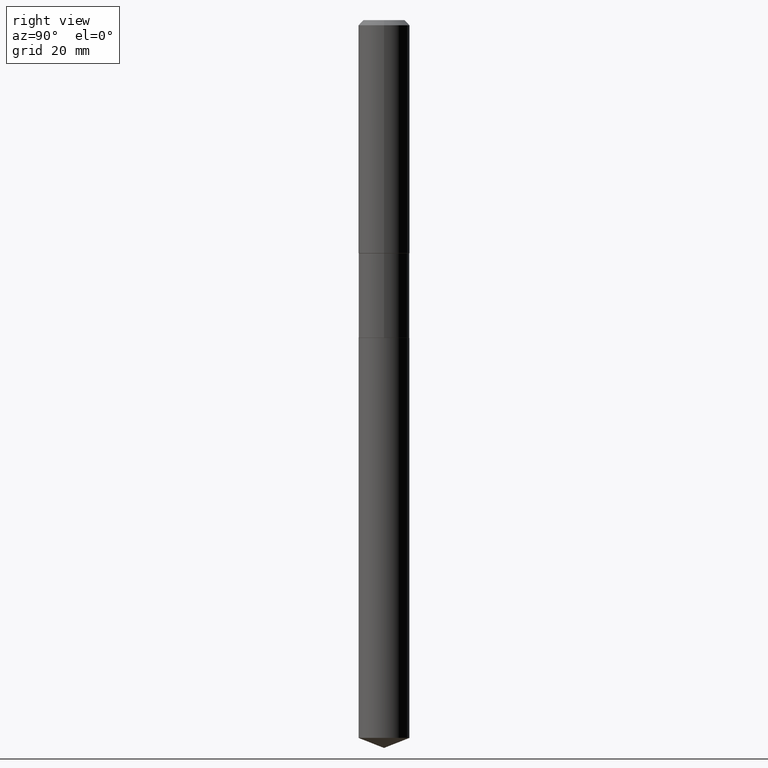
[diagram: clean part render]
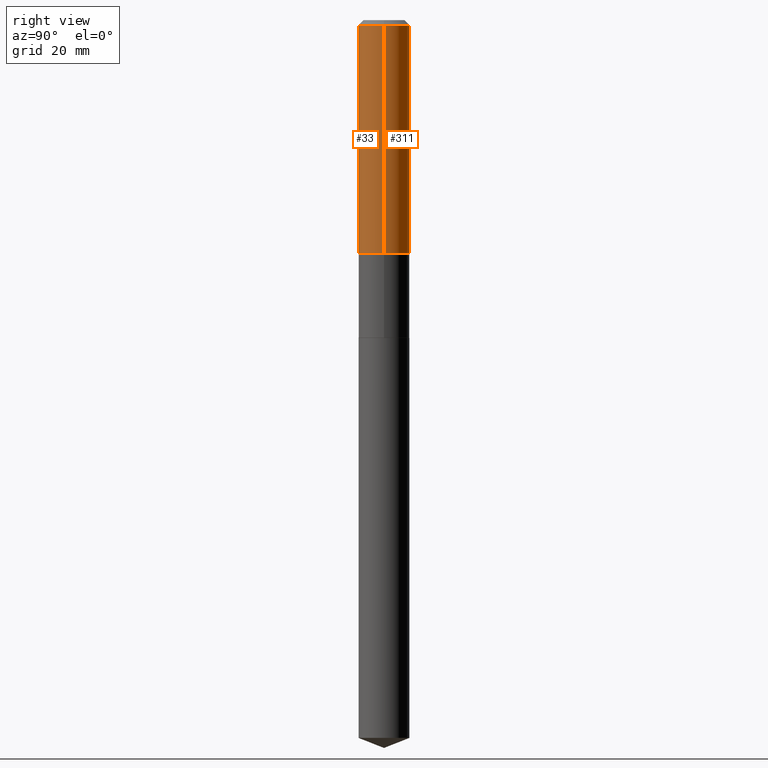
[diagram: same view with one multi-face feature highlighted, each face labeled with its STEP entity id]
A machine part, right view. The highlighted faces form ONE feature: a constant-radius fillet chain: 2 tangent blend faces with common blend radius 5 mm. The faces share edges in the B-rep.
Their STEP definitions:
[1] entity #33 (Cylinder):
#4 = DIRECTION ( 'NONE',  ( 1.000000000000000000, -6.982962677686265922E-15, 0.000000000000000000 ) ) ;
#14 = VERTEX_POINT ( 'NONE', #322 ) ;
#33 = ADVANCED_FACE ( 'NONE', ( #139 ), #134, .T. ) ;
#63 = VERTEX_POINT ( 'NONE', #484 ) ;
#77 = DIRECTION ( 'NONE',  ( -2.445468806185136877E-29, 3.491481338843145188E-15, 1.000000000000000000 ) ) ;
#107 = VECTOR ( 'NONE', #77, 39.37007874015748143 ) ;
#134 = CYLINDRICAL_SURFACE ( 'NONE', #151, 0.1968500000000001082 ) ;
#135 = CARTESIAN_POINT ( 'NONE',  ( 0.1968500000000001082, -1.374596203102542397E-15, 9.598753983154305062E-30 ) ) ;
#139 = FACE_OUTER_BOUND ( 'NONE', #354, .T. ) ;
#151 = AXIS2_PLACEMENT_3D ( 'NONE', #284, #327, #400 ) ;
#179 = DIRECTION ( 'NONE',  ( -2.445468806185136877E-29, 3.491481338843145188E-15, 1.000000000000000000 ) ) ;
#187 = CARTESIAN_POINT ( 'NONE',  ( 9.627810689950943645E-31, -1.374596203102555315E-16, -0.03937000000000024508 ) ) ;
#192 = ORIENTED_EDGE ( 'NONE', *, *, #383, .F. ) ;
#212 = CIRCLE ( 'NONE', #228, 0.1968500000000000250 ) ;
#213 = EDGE_CURVE ( 'NONE', #14, #239, #378, .T. ) ;
#222 = CARTESIAN_POINT ( 'NONE',  ( 0.1968500000000000250, -1.512055823412797189E-15, -0.03937000000000024508 ) ) ;
#223 = DIRECTION ( 'NONE',  ( -2.445468806185136597E-29, 3.491481338843145583E-15, 1.000000000000000000 ) ) ;
#228 = AXIS2_PLACEMENT_3D ( 'NONE', #187, #341, #4 ) ;
#229 = ORIENTED_EDGE ( 'NONE', *, *, #213, .T. ) ;
#239 = VERTEX_POINT ( 'NONE', #338 ) ;
#284 = CARTESIAN_POINT ( 'NONE',  ( 0.000000000000000000, 0.000000000000000000, 0.000000000000000000 ) ) ;
#289 = AXIS2_PLACEMENT_3D ( 'NONE', #336, #223, #488 ) ;
#322 = CARTESIAN_POINT ( 'NONE',  ( -0.1968500000000002192, -4.850524498984641901E-15, -1.789849999999998831 ) ) ;
#327 = DIRECTION ( 'NONE',  ( -2.445468806185136597E-29, 3.491481338843145583E-15, 1.000000000000000000 ) ) ;
#336 = CARTESIAN_POINT ( 'NONE',  ( 4.377022342750463686E-29, -6.249227874328400478E-15, -1.789849999999998831 ) ) ;
#338 = CARTESIAN_POINT ( 'NONE',  ( 0.1968500000000002192, -7.623824077430942875E-15, -1.789849999999998831 ) ) ;
#341 = DIRECTION ( 'NONE',  ( -2.445468806185136597E-29, 3.491481338843145583E-15, 1.000000000000000000 ) ) ;
#345 = EDGE_CURVE ( 'NONE', #14, #63, #420, .T. ) ;
#350 = VECTOR ( 'NONE', #179, 39.37007874015748143 ) ;
#354 = EDGE_LOOP ( 'NONE', ( #360, #229, #462, #192 ) ) ;
#360 = ORIENTED_EDGE ( 'NONE', *, *, #345, .F. ) ;
#361 = VERTEX_POINT ( 'NONE', #222 ) ;
#378 = CIRCLE ( 'NONE', #289, 0.1968500000000002192 ) ;
#383 = EDGE_CURVE ( 'NONE', #63, #361, #212, .T. ) ;
#400 = DIRECTION ( 'NONE',  ( 1.000000000000000000, -6.982962677686266711E-15, 4.876176775795935793E-29 ) ) ;
#409 = CARTESIAN_POINT ( 'NONE',  ( -0.1968500000000001082, 1.398703375343757985E-15, -9.682923725166787881E-30 ) ) ;
#420 = LINE ( 'NONE', #409, #107 ) ;
#462 = ORIENTED_EDGE ( 'NONE', *, *, #490, .T. ) ;
#479 = LINE ( 'NONE', #135, #350 ) ;
#484 = CARTESIAN_POINT ( 'NONE',  ( -0.1968500000000000250, -1.794640371975569453E-15, -0.03937000000000024508 ) ) ;
#488 = DIRECTION ( 'NONE',  ( 1.000000000000000000, -6.982962677686265922E-15, 0.000000000000000000 ) ) ;
#490 = EDGE_CURVE ( 'NONE', #239, #361, #479, .T. ) ;
[2] entity #311 (Cylinder):
#14 = VERTEX_POINT ( 'NONE', #322 ) ;
#43 = ORIENTED_EDGE ( 'NONE', *, *, #394, .F. ) ;
#45 = EDGE_LOOP ( 'NONE', ( #279, #87, #43, #314 ) ) ;
#61 = DIRECTION ( 'NONE',  ( -2.445468806185136597E-29, 3.491481338843145583E-15, 1.000000000000000000 ) ) ;
#63 = VERTEX_POINT ( 'NONE', #484 ) ;
#77 = DIRECTION ( 'NONE',  ( -2.445468806185136877E-29, 3.491481338843145188E-15, 1.000000000000000000 ) ) ;
#87 = ORIENTED_EDGE ( 'NONE', *, *, #345, .T. ) ;
#107 = VECTOR ( 'NONE', #77, 39.37007874015748143 ) ;
#119 = CARTESIAN_POINT ( 'NONE',  ( 9.627810689950943645E-31, -1.374596203102555315E-16, -0.03937000000000024508 ) ) ;
#135 = CARTESIAN_POINT ( 'NONE',  ( 0.1968500000000001082, -1.374596203102542397E-15, 9.598753983154305062E-30 ) ) ;
#179 = DIRECTION ( 'NONE',  ( -2.445468806185136877E-29, 3.491481338843145188E-15, 1.000000000000000000 ) ) ;
#180 = DIRECTION ( 'NONE',  ( 1.000000000000000000, -6.982962677686265922E-15, 0.000000000000000000 ) ) ;
#220 = DIRECTION ( 'NONE',  ( -2.445468806185136597E-29, 3.491481338843145583E-15, 1.000000000000000000 ) ) ;
#222 = CARTESIAN_POINT ( 'NONE',  ( 0.1968500000000000250, -1.512055823412797189E-15, -0.03937000000000024508 ) ) ;
#239 = VERTEX_POINT ( 'NONE', #338 ) ;
#263 = DIRECTION ( 'NONE',  ( 1.000000000000000000, -6.982962677686265922E-15, 0.000000000000000000 ) ) ;
#279 = ORIENTED_EDGE ( 'NONE', *, *, #476, .T. ) ;
#290 = CYLINDRICAL_SURFACE ( 'NONE', #481, 0.1968500000000001082 ) ;
#291 = CIRCLE ( 'NONE', #318, 0.1968500000000000250 ) ;
#299 = CIRCLE ( 'NONE', #335, 0.1968500000000002192 ) ;
#311 = ADVANCED_FACE ( 'NONE', ( #355 ), #290, .T. ) ;
#314 = ORIENTED_EDGE ( 'NONE', *, *, #490, .F. ) ;
#318 = AXIS2_PLACEMENT_3D ( 'NONE', #119, #334, #263 ) ;
#322 = CARTESIAN_POINT ( 'NONE',  ( -0.1968500000000002192, -4.850524498984641901E-15, -1.789849999999998831 ) ) ;
#334 = DIRECTION ( 'NONE',  ( -2.445468806185136597E-29, 3.491481338843145583E-15, 1.000000000000000000 ) ) ;
#335 = AXIS2_PLACEMENT_3D ( 'NONE', #438, #61, #180 ) ;
#338 = CARTESIAN_POINT ( 'NONE',  ( 0.1968500000000002192, -7.623824077430942875E-15, -1.789849999999998831 ) ) ;
#345 = EDGE_CURVE ( 'NONE', #14, #63, #420, .T. ) ;
#350 = VECTOR ( 'NONE', #179, 39.37007874015748143 ) ;
#355 = FACE_OUTER_BOUND ( 'NONE', #45, .T. ) ;
#361 = VERTEX_POINT ( 'NONE', #222 ) ;
#373 = DIRECTION ( 'NONE',  ( 1.000000000000000000, -6.982962677686266711E-15, 4.876176775795935793E-29 ) ) ;
#394 = EDGE_CURVE ( 'NONE', #361, #63, #291, .T. ) ;
#409 = CARTESIAN_POINT ( 'NONE',  ( -0.1968500000000001082, 1.398703375343757985E-15, -9.682923725166787881E-30 ) ) ;
#420 = LINE ( 'NONE', #409, #107 ) ;
#438 = CARTESIAN_POINT ( 'NONE',  ( 4.377022342750463686E-29, -6.249227874328400478E-15, -1.789849999999998831 ) ) ;
#460 = CARTESIAN_POINT ( 'NONE',  ( 0.000000000000000000, 0.000000000000000000, 0.000000000000000000 ) ) ;
#476 = EDGE_CURVE ( 'NONE', #239, #14, #299, .T. ) ;
#479 = LINE ( 'NONE', #135, #350 ) ;
#481 = AXIS2_PLACEMENT_3D ( 'NONE', #460, #220, #373 ) ;
#484 = CARTESIAN_POINT ( 'NONE',  ( -0.1968500000000000250, -1.794640371975569453E-15, -0.03937000000000024508 ) ) ;
#490 = EDGE_CURVE ( 'NONE', #239, #361, #479, .T. ) ;